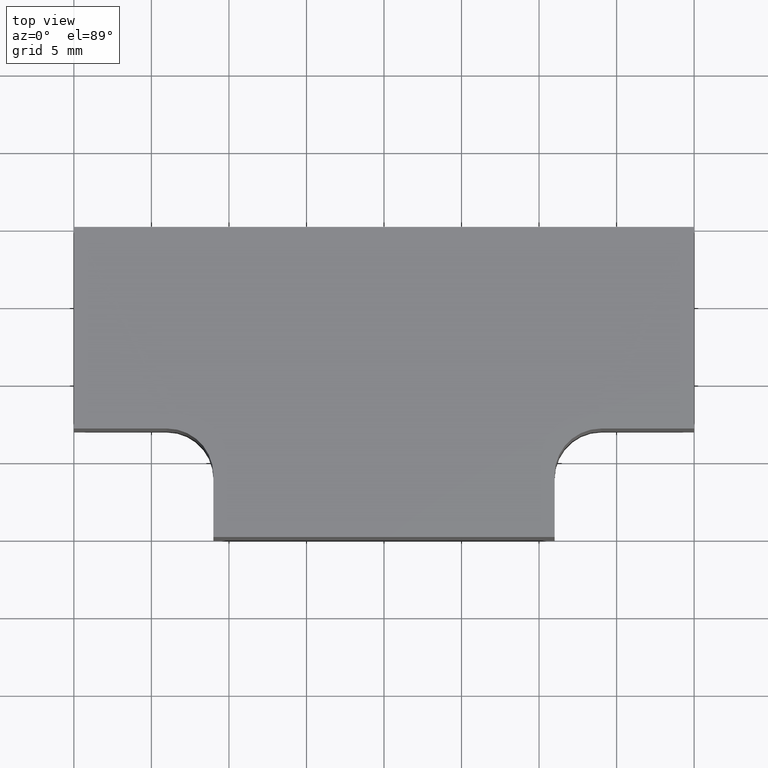
[diagram: clean part render]
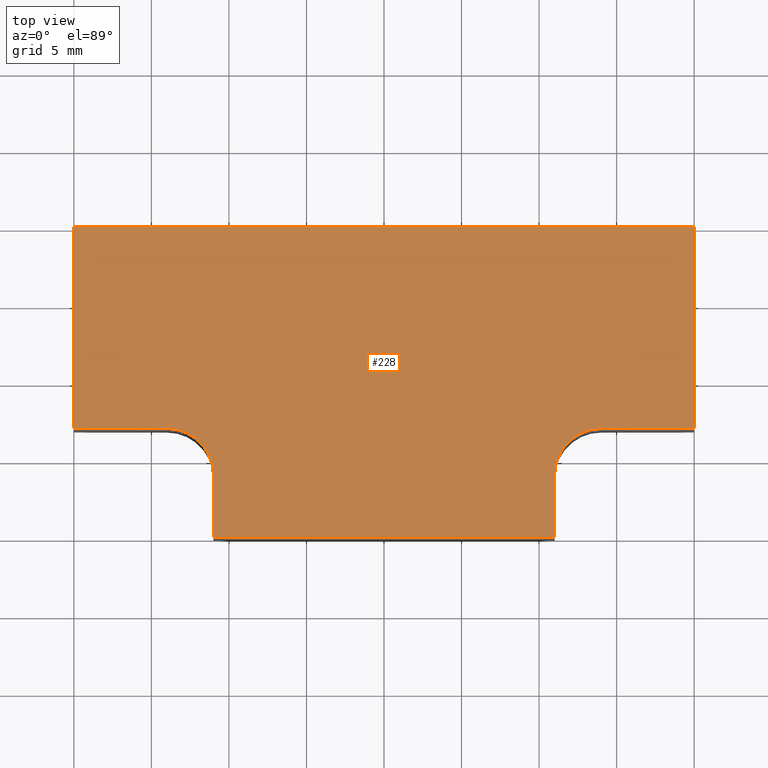
[diagram: same view with one face highlighted and labeled with its STEP entity id]
A machine part, top view. The second image highlights one B-rep face of the part: STEP entity #228.
In plain terms, the highlighted planar face has unit normal (0, 0, 1).
Its self-contained STEP definition (entity closure, byte-faithful):
#28=FACE_OUTER_BOUND('',#40,.T.);
#40=EDGE_LOOP('',(#197,#198,#199,#200,#201,#202,#203,#204,#205,#206));
#49=LINE('',#353,#75);
#52=LINE('',#358,#78);
#55=LINE('',#366,#81);
#57=LINE('',#370,#83);
#59=LINE('',#374,#85);
#61=LINE('',#378,#87);
#63=LINE('',#382,#89);
#66=LINE('',#389,#92);
#75=VECTOR('',#286,10.);
#78=VECTOR('',#291,10.);
#81=VECTOR('',#300,10.);
#83=VECTOR('',#304,10.);
#85=VECTOR('',#308,10.);
#87=VECTOR('',#312,10.);
#89=VECTOR('',#316,10.);
#92=VECTOR('',#325,10.);
#95=CIRCLE('',#258,3.);
#96=CIRCLE('',#265,3.);
#107=VERTEX_POINT('',#351);
#108=VERTEX_POINT('',#352);
#109=VERTEX_POINT('',#357);
#110=VERTEX_POINT('',#361);
#111=VERTEX_POINT('',#365);
#112=VERTEX_POINT('',#369);
#113=VERTEX_POINT('',#373);
#114=VERTEX_POINT('',#377);
#115=VERTEX_POINT('',#381);
#116=VERTEX_POINT('',#385);
#127=EDGE_CURVE('',#107,#108,#49,.T.);
#130=EDGE_CURVE('',#108,#109,#52,.T.);
#132=EDGE_CURVE('',#109,#110,#95,.T.);
#134=EDGE_CURVE('',#110,#111,#55,.T.);
#136=EDGE_CURVE('',#111,#112,#57,.T.);
#138=EDGE_CURVE('',#112,#113,#59,.T.);
#140=EDGE_CURVE('',#113,#114,#61,.T.);
#142=EDGE_CURVE('',#114,#115,#63,.T.);
#144=EDGE_CURVE('',#115,#116,#96,.T.);
#146=EDGE_CURVE('',#116,#107,#66,.T.);
#197=ORIENTED_EDGE('',*,*,#127,.F.);
#198=ORIENTED_EDGE('',*,*,#146,.F.);
#199=ORIENTED_EDGE('',*,*,#144,.F.);
#200=ORIENTED_EDGE('',*,*,#142,.F.);
#201=ORIENTED_EDGE('',*,*,#140,.F.);
#202=ORIENTED_EDGE('',*,*,#138,.F.);
#203=ORIENTED_EDGE('',*,*,#136,.F.);
#204=ORIENTED_EDGE('',*,*,#134,.F.);
#205=ORIENTED_EDGE('',*,*,#132,.F.);
#206=ORIENTED_EDGE('',*,*,#130,.F.);
#216=PLANE('',#267);
#228=ADVANCED_FACE('',(#28),#216,.T.);
#258=AXIS2_PLACEMENT_3D('',#362,#295,#296);
#265=AXIS2_PLACEMENT_3D('',#386,#320,#321);
#267=AXIS2_PLACEMENT_3D('',#390,#326,#327);
#286=DIRECTION('',(-1.,0.,0.));
#291=DIRECTION('',(5.55111512312578E-16,1.,0.));
#295=DIRECTION('center_axis',(0.,0.,1.));
#296=DIRECTION('ref_axis',(-1.,0.,0.));
#300=DIRECTION('',(-1.,3.70074341541719E-16,0.));
#304=DIRECTION('',(-3.41607084500048E-16,1.,0.));
#308=DIRECTION('',(1.,0.,0.));
#312=DIRECTION('',(0.,-1.,0.));
#316=DIRECTION('',(-1.,-3.70074341541719E-16,0.));
#320=DIRECTION('center_axis',(0.,0.,1.));
#321=DIRECTION('ref_axis',(0.,-1.,0.));
#325=DIRECTION('',(5.55111512312578E-16,-1.,0.));
#326=DIRECTION('center_axis',(0.,0.,1.));
#327=DIRECTION('ref_axis',(1.,0.,0.));
#351=CARTESIAN_POINT('',(11.,-20.,7.5));
#352=CARTESIAN_POINT('',(-11.,-20.,7.5));
#353=CARTESIAN_POINT('',(-11.,-20.,7.5));
#357=CARTESIAN_POINT('',(-11.,-16.,7.5));
#358=CARTESIAN_POINT('',(-11.,-16.,7.5));
#361=CARTESIAN_POINT('',(-14.,-13.,7.5));
#362=CARTESIAN_POINT('Origin',(-14.,-16.,7.5));
#365=CARTESIAN_POINT('',(-20.,-13.,7.5));
#366=CARTESIAN_POINT('',(-20.,-13.,7.5));
#369=CARTESIAN_POINT('',(-20.,0.,7.5));
#370=CARTESIAN_POINT('',(-20.,0.,7.5));
#373=CARTESIAN_POINT('',(20.,0.,7.5));
#374=CARTESIAN_POINT('',(20.,0.,7.5));
#377=CARTESIAN_POINT('',(20.,-13.,7.5));
#378=CARTESIAN_POINT('',(20.,-13.,7.5));
#381=CARTESIAN_POINT('',(14.,-13.,7.5));
#382=CARTESIAN_POINT('',(14.,-13.,7.5));
#385=CARTESIAN_POINT('',(11.,-16.,7.5));
#386=CARTESIAN_POINT('Origin',(14.,-16.,7.5));
#389=CARTESIAN_POINT('',(11.,-20.,7.5));
#390=CARTESIAN_POINT('Origin',(-9.47097041733638E-17,-8.87530972879931,
7.5));